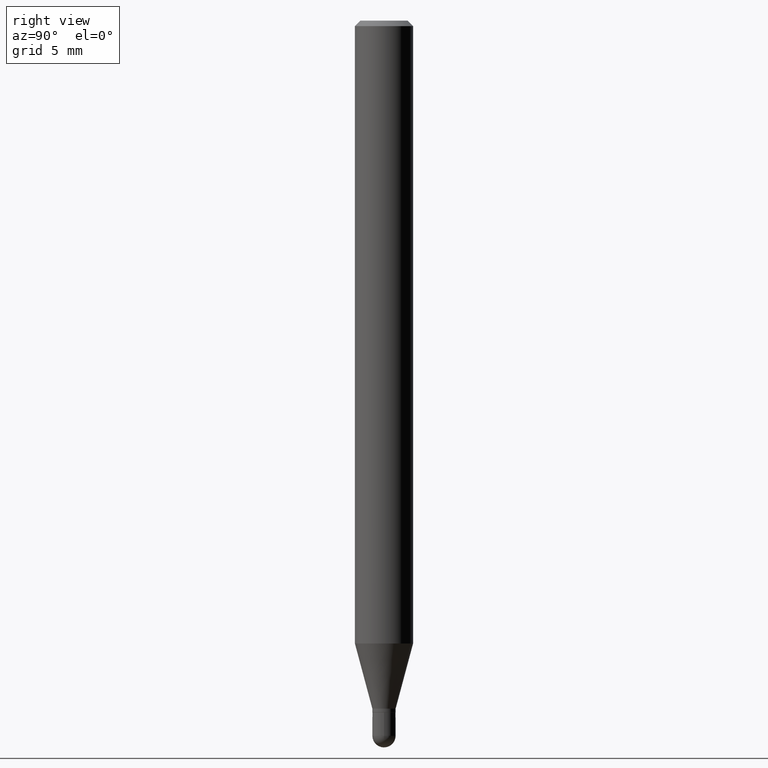
[diagram: clean part render]
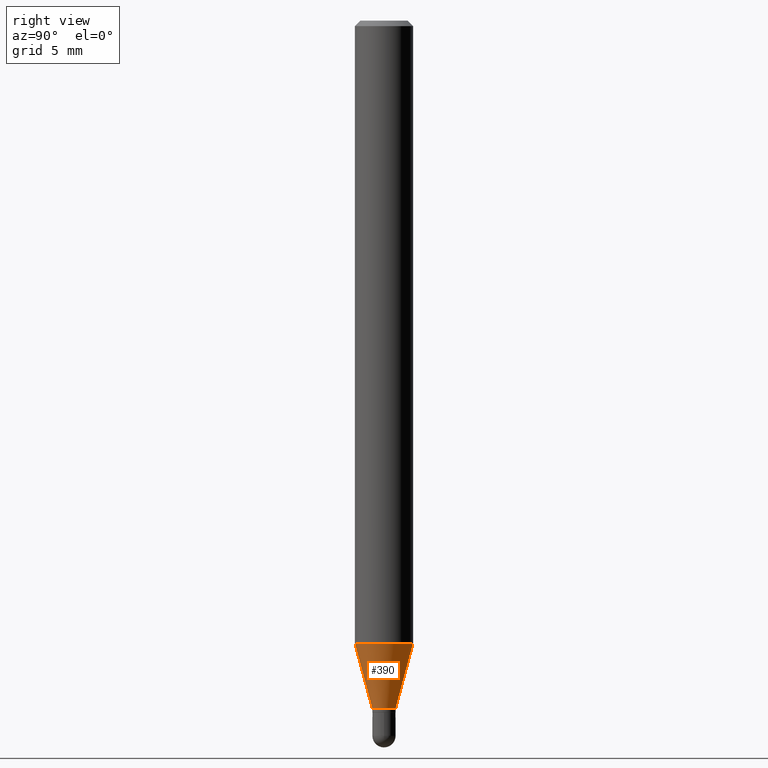
[diagram: same view with one face highlighted and labeled with its STEP entity id]
A machine part, right view. The second image highlights one B-rep face of the part: STEP entity #390.
In plain terms, the highlighted conical surface has half-angle 15 deg.
Its self-contained STEP definition (entity closure, byte-faithful):
#2 = DIRECTION ( 'NONE',  ( -6.982962677686264344E-15, -1.000000000000000000, 3.469013325287953293E-15 ) ) ;
#31 = AXIS2_PLACEMENT_3D ( 'NONE', #124, #400, #52 ) ;
#33 = CARTESIAN_POINT ( 'NONE',  ( 4.125821572559714249E-29, -5.890800079852744300E-15, -1.687160599342371059 ) ) ;
#52 = DIRECTION ( 'NONE',  ( -6.982962677686265133E-15, -1.000000000000000000, 0.000000000000000000 ) ) ;
#63 = CARTESIAN_POINT ( 'NONE',  ( 5.595524044111199211E-16, 0.07874999999999408862, -1.687160599342371503 ) ) ;
#89 = AXIS2_PLACEMENT_3D ( 'NONE', #354, #233, #163 ) ;
#92 = LINE ( 'NONE', #102, #108 ) ;
#102 = CARTESIAN_POINT ( 'NONE',  ( -2.199633243470712885E-16, -0.03150000000000643258, -1.863499999999999934 ) ) ;
#108 = VECTOR ( 'NONE', #402, 39.37007874015748854 ) ;
#120 = CIRCLE ( 'NONE', #89, 0.03149999999999993083 ) ;
#124 = CARTESIAN_POINT ( 'NONE',  ( 4.557046023633951500E-29, -6.506497338240621672E-15, -1.863499999999999934 ) ) ;
#142 = VERTEX_POINT ( 'NONE', #153 ) ;
#153 = CARTESIAN_POINT ( 'NONE',  ( -2.199633243470712885E-16, -0.03150000000000643258, -1.863499999999999934 ) ) ;
#154 = DIRECTION ( 'NONE',  ( -2.445423141204159656E-29, 3.491546733694993619E-15, 1.000000000000000000 ) ) ;
#163 = DIRECTION ( 'NONE',  ( -6.982962677686265133E-15, -1.000000000000000000, 0.000000000000000000 ) ) ;
#172 = CARTESIAN_POINT ( 'NONE',  ( 2.238209617644766238E-16, 0.03149999999999342215, -1.863499999999999934 ) ) ;
#206 = VERTEX_POINT ( 'NONE', #63 ) ;
#213 = ORIENTED_EDGE ( 'NONE', *, *, #319, .T. ) ;
#221 = ORIENTED_EDGE ( 'NONE', *, *, #468, .T. ) ;
#224 = EDGE_CURVE ( 'NONE', #142, #485, #92, .T. ) ;
#228 = CONICAL_SURFACE ( 'NONE', #31, 0.03149999999999993083, 0.2617993877991507956 ) ;
#231 = CARTESIAN_POINT ( 'NONE',  ( 3.916866830877983711E-16, 0.03149999999999342215, -1.863499999999999934 ) ) ;
#233 = DIRECTION ( 'NONE',  ( -2.445423141204159656E-29, 3.491546733694993619E-15, 1.000000000000000000 ) ) ;
#241 = FACE_OUTER_BOUND ( 'NONE', #366, .T. ) ;
#245 = CARTESIAN_POINT ( 'NONE',  ( -5.499083108677523249E-16, -0.07875000000000592637, -1.687160599342370837 ) ) ;
#288 = LINE ( 'NONE', #172, #380 ) ;
#312 = ORIENTED_EDGE ( 'NONE', *, *, #377, .F. ) ;
#319 = EDGE_CURVE ( 'NONE', #461, #206, #288, .T. ) ;
#346 = CIRCLE ( 'NONE', #415, 0.07875000000000000056 ) ;
#354 = CARTESIAN_POINT ( 'NONE',  ( 4.557046023633951500E-29, -6.506497338240621672E-15, -1.863499999999999934 ) ) ;
#366 = EDGE_LOOP ( 'NONE', ( #221, #213, #312, #432 ) ) ;
#377 = EDGE_CURVE ( 'NONE', #485, #206, #346, .T. ) ;
#380 = VECTOR ( 'NONE', #489, 39.37007874015748854 ) ;
#390 = ADVANCED_FACE ( 'NONE', ( #241 ), #228, .T. ) ;
#400 = DIRECTION ( 'NONE',  ( -2.445423141204159656E-29, 3.491546733694993619E-15, 1.000000000000000000 ) ) ;
#402 = DIRECTION ( 'NONE',  ( -1.807323732225333295E-15, -0.2588190451025186301, 0.9659258262890687563 ) ) ;
#415 = AXIS2_PLACEMENT_3D ( 'NONE', #33, #154, #2 ) ;
#432 = ORIENTED_EDGE ( 'NONE', *, *, #224, .F. ) ;
#461 = VERTEX_POINT ( 'NONE', #231 ) ;
#468 = EDGE_CURVE ( 'NONE', #142, #461, #120, .T. ) ;
#485 = VERTEX_POINT ( 'NONE', #245 ) ;
#489 = DIRECTION ( 'NONE',  ( 1.839019923739603471E-15, 0.2588190451025254024, 0.9659258262890669799 ) ) ;